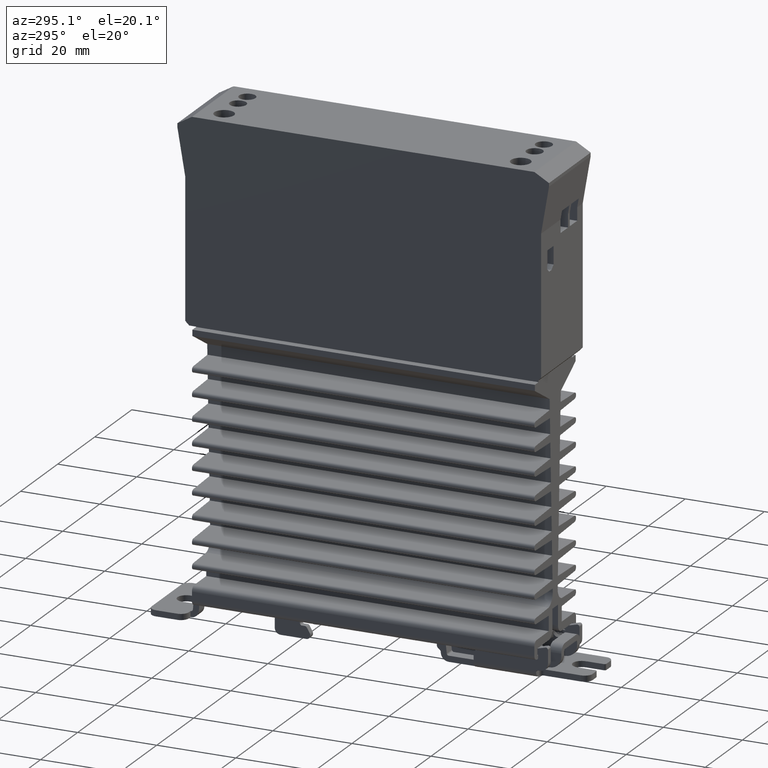
[diagram: clean part render]
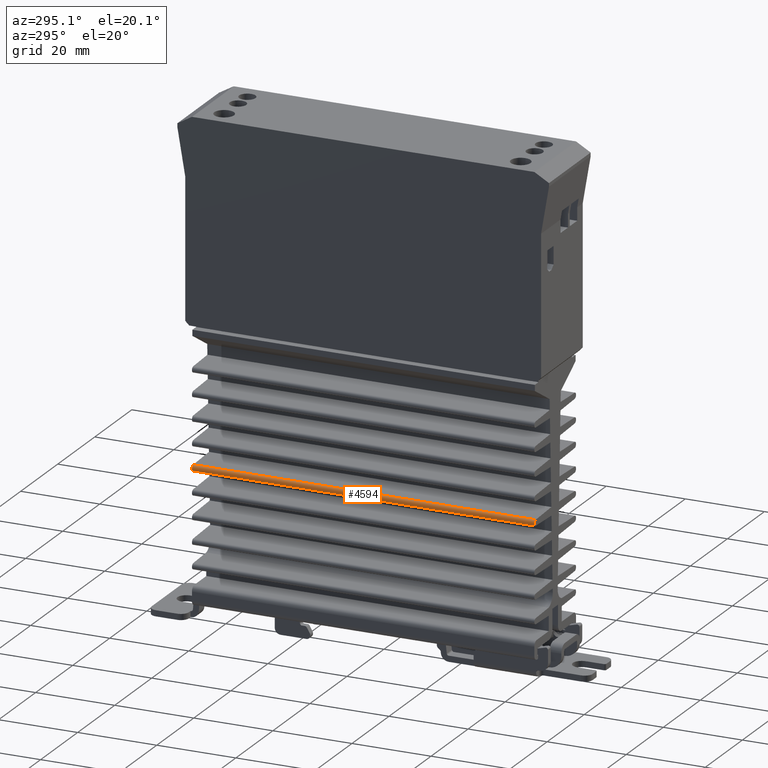
[diagram: same view with one face highlighted and labeled with its STEP entity id]
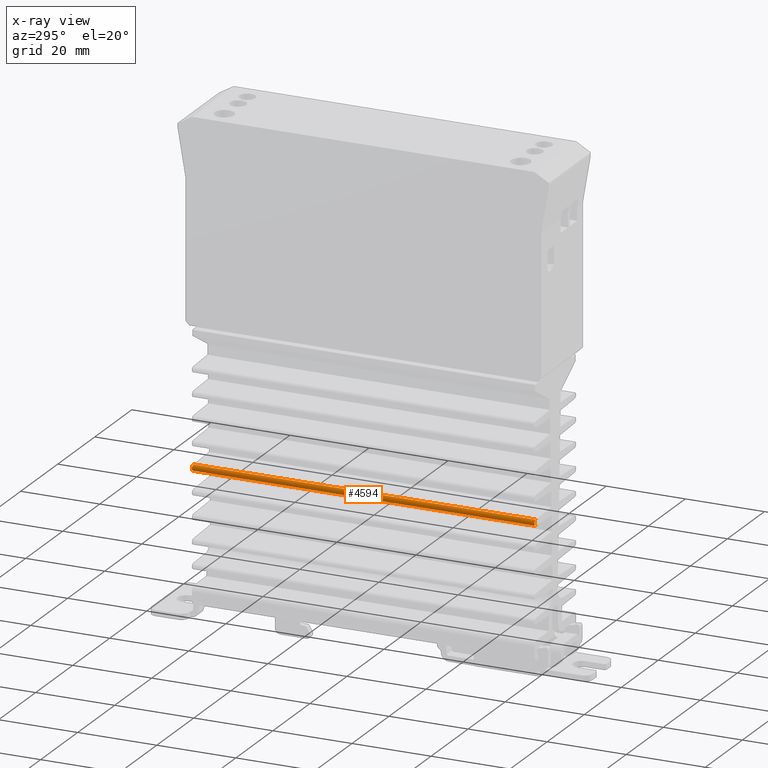
[diagram: x-ray of the same camera — body ghosted, the highlighted face saturated]
A machine part, auxiliary view. The second image highlights one B-rep face of the part: STEP entity #4594.
The next image is the same camera in x-ray: the body ghosted, the highlighted face saturated — about 0% of this face is hidden behind the body in this view.
In plain terms, the highlighted cylindrical surface (edge-blend (fillet) strip) has radius 0.75 mm, axis along (0, -1, 0).
Its self-contained STEP definition (entity closure, byte-faithful):
#293 = AXIS2_PLACEMENT_3D ( 'NONE', #11788, #515, #5524 ) ;
#515 = DIRECTION ( 'NONE',  ( 0.000000000000000000, -1.000000000000000000, 0.000000000000000000 ) ) ;
#651 = DIRECTION ( 'NONE',  ( -0.000000000000000000, -1.000000000000000000, -0.000000000000000000 ) ) ;
#810 = LINE ( 'NONE', #11923, #12101 ) ;
#1010 = DIRECTION ( 'NONE',  ( 0.000000000000000000, -1.000000000000000000, 0.000000000000000000 ) ) ;
#2172 = AXIS2_PLACEMENT_3D ( 'NONE', #6021, #1010, #6101 ) ;
#2841 = AXIS2_PLACEMENT_3D ( 'NONE', #13406, #4606, #8146 ) ;
#2905 = EDGE_CURVE ( 'NONE', #6110, #3138, #810, .T. ) ;
#3138 = VERTEX_POINT ( 'NONE', #12805 ) ;
#3418 = FACE_OUTER_BOUND ( 'NONE', #4446, .T. ) ;
#4446 = EDGE_LOOP ( 'NONE', ( #10920, #12442, #7753, #4622 ) ) ;
#4594 = ADVANCED_FACE ( 'NONE', ( #3418 ), #12281, .T. ) ;
#4606 = DIRECTION ( 'NONE',  ( 0.000000000000000000, -1.000000000000000000, 0.000000000000000000 ) ) ;
#4622 = ORIENTED_EDGE ( 'NONE', *, *, #2905, .T. ) ;
#4877 = EDGE_CURVE ( 'NONE', #8576, #3138, #6061, .T. ) ;
#5524 = DIRECTION ( 'NONE',  ( 0.000000000000000000, 0.000000000000000000, -1.000000000000000000 ) ) ;
#6021 = CARTESIAN_POINT ( 'NONE',  ( -0.4133858267716535861, -1.704724409448818978, -1.370078740157480324 ) ) ;
#6061 = CIRCLE ( 'NONE', #293, 0.02952755905511813758 ) ;
#6101 = DIRECTION ( 'NONE',  ( 0.000000000000000000, 0.000000000000000000, -1.000000000000000000 ) ) ;
#6109 = CARTESIAN_POINT ( 'NONE',  ( -0.4144163237215299778, 1.704724409448818978, -1.340569168493531249 ) ) ;
#6110 = VERTEX_POINT ( 'NONE', #10031 ) ;
#6859 = EDGE_CURVE ( 'NONE', #8576, #14502, #11319, .T. ) ;
#7446 = DIRECTION ( 'NONE',  ( -0.000000000000000000, 1.000000000000000000, -0.000000000000000000 ) ) ;
#7753 = ORIENTED_EDGE ( 'NONE', *, *, #9217, .T. ) ;
#8062 = CIRCLE ( 'NONE', #2841, 0.02952755905511813758 ) ;
#8146 = DIRECTION ( 'NONE',  ( 0.000000000000000000, 0.000000000000000000, -1.000000000000000000 ) ) ;
#8254 = CARTESIAN_POINT ( 'NONE',  ( -0.4144163237215299778, -1.704724409448818978, -1.340569168493531249 ) ) ;
#8576 = VERTEX_POINT ( 'NONE', #8254 ) ;
#9217 = EDGE_CURVE ( 'NONE', #14502, #6110, #8062, .T. ) ;
#9794 = VECTOR ( 'NONE', #7446, 39.37007874015748143 ) ;
#10031 = CARTESIAN_POINT ( 'NONE',  ( -0.4144163237215291451, 1.704724409448818978, -1.399588311821431175 ) ) ;
#10920 = ORIENTED_EDGE ( 'NONE', *, *, #4877, .F. ) ;
#11238 = CARTESIAN_POINT ( 'NONE',  ( -0.4144163237215291451, -1.704724409448818978, -1.340569168493531249 ) ) ;
#11319 = LINE ( 'NONE', #11238, #9794 ) ;
#11788 = CARTESIAN_POINT ( 'NONE',  ( -0.4133858267716535861, -1.704724409448818978, -1.370078740157480324 ) ) ;
#11923 = CARTESIAN_POINT ( 'NONE',  ( -0.4144163237215291451, -1.704724409448818978, -1.399588311821431175 ) ) ;
#12101 = VECTOR ( 'NONE', #651, 39.37007874015748143 ) ;
#12281 = CYLINDRICAL_SURFACE ( 'NONE', #2172, 0.02952755905511813758 ) ;
#12442 = ORIENTED_EDGE ( 'NONE', *, *, #6859, .T. ) ;
#12805 = CARTESIAN_POINT ( 'NONE',  ( -0.4144163237215291451, -1.704724409448818978, -1.399588311821431175 ) ) ;
#13406 = CARTESIAN_POINT ( 'NONE',  ( -0.4133858267716535861, 1.704724409448818978, -1.370078740157480324 ) ) ;
#14502 = VERTEX_POINT ( 'NONE', #6109 ) ;